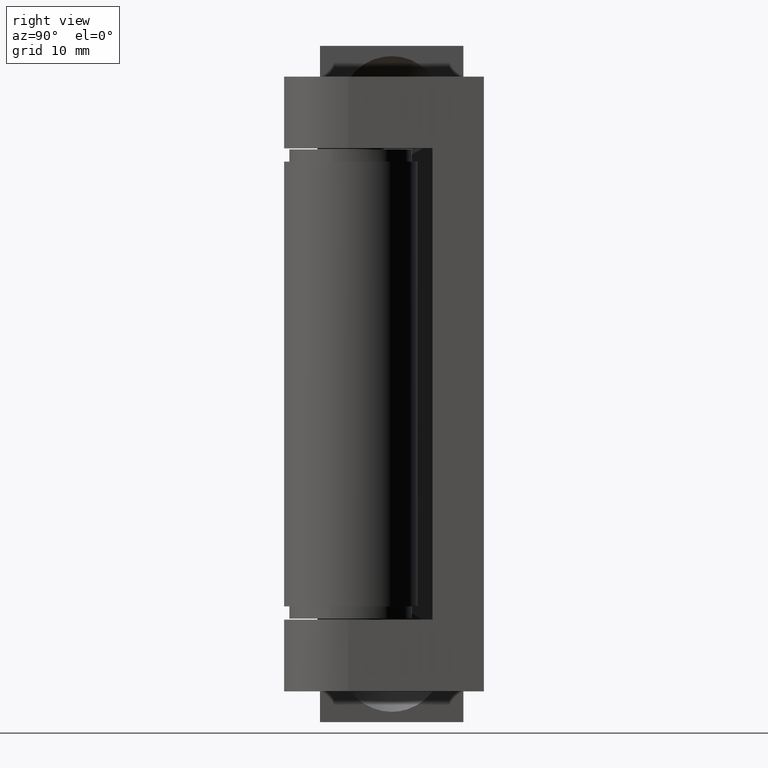
[diagram: clean part render]
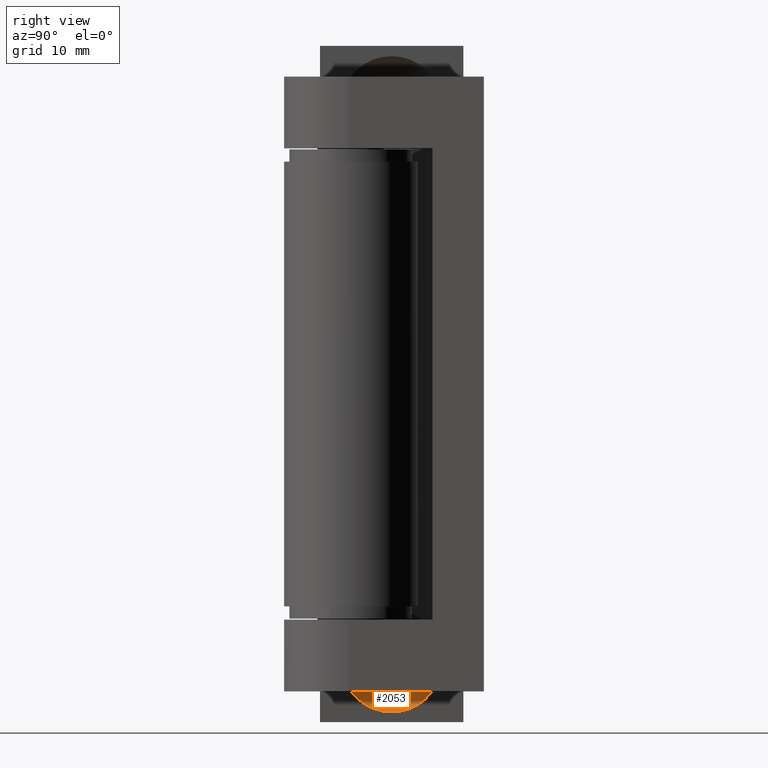
[diagram: same view with one face highlighted and labeled with its STEP entity id]
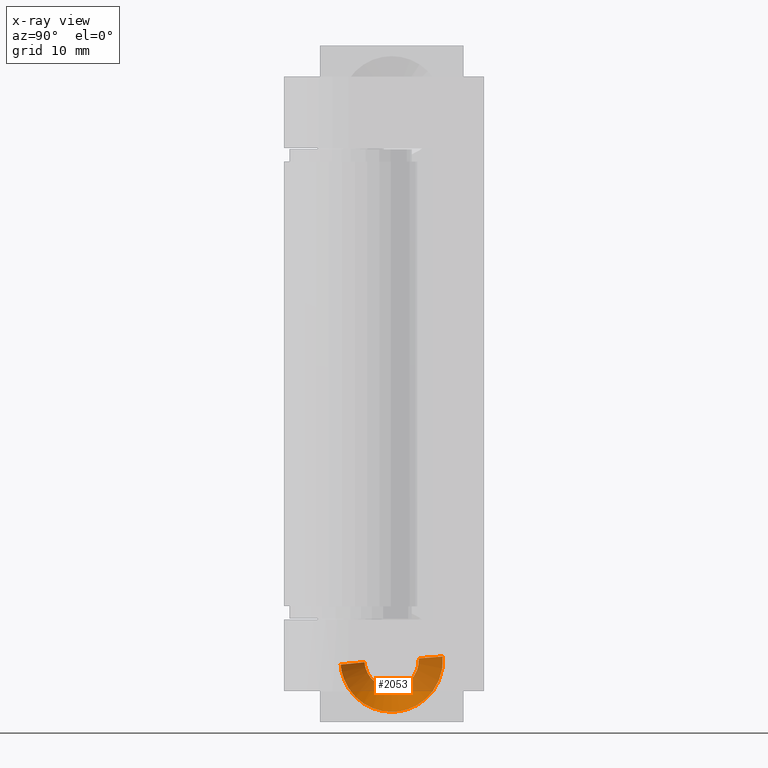
[diagram: x-ray of the same camera — body ghosted, the highlighted face saturated]
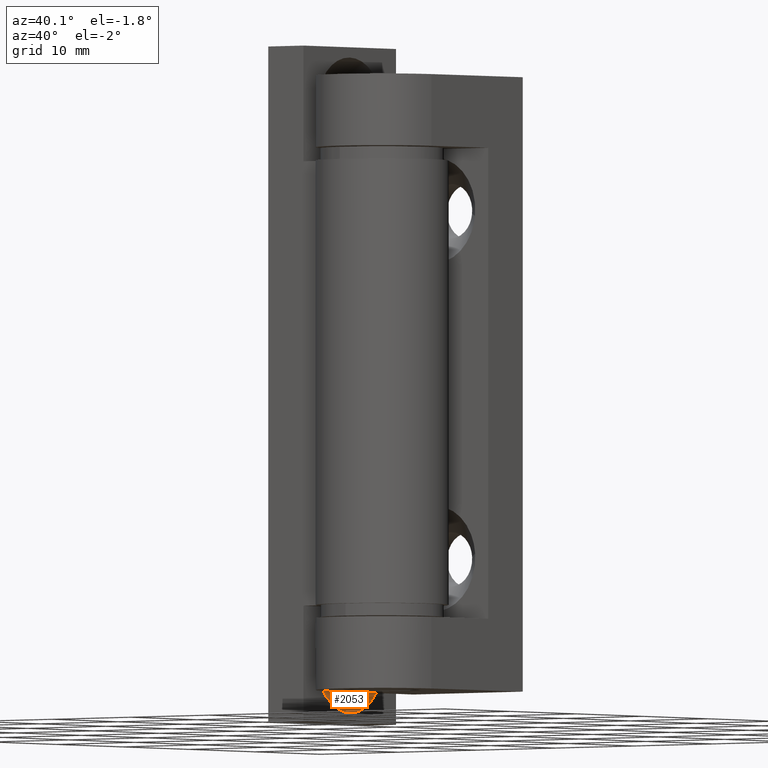
[diagram: same view with one face highlighted and labeled with its STEP entity id]
A machine part, right view. The second image highlights one B-rep face of the part: STEP entity #2053.
The next image is the same camera in x-ray: the body ghosted, the highlighted face saturated — about 60% of this face is hidden behind the body in this view.
A second angle (auxiliary view) of the same face is appended — the face is thin or edge-on in the first view.
In plain terms, the highlighted face is a freeform B-spline surface patch.
Its self-contained STEP definition (entity closure, byte-faithful):
#1744=CARTESIAN_POINT('',(-9.850000356230892,6.632692935120465,2.697633380869453));
#1745=VERTEX_POINT('',#1744);
#1746=CARTESIAN_POINT('',(-9.850000356230892,3.999999572522890,0.350000142492935));
#1747=VERTEX_POINT('',#1746);
#1748=CARTESIAN_POINT('',(-9.850000356230892,6.632692935120465,2.697633380869453));
#1749=CARTESIAN_POINT('',(-9.850000356230892,6.363065537566834,0.350000142492935));
#1750=CARTESIAN_POINT('',(-9.850000356230892,3.999999572522890,0.350000142492935));
#1758=(BOUNDED_CURVE()B_SPLINE_CURVE(2,(#1748,#1749,#1750),.UNSPECIFIED.,.F.,.U.)B_SPLINE_CURVE_WITH_KNOTS((3,3),(0.269767755884520,0.500000000000000),.UNSPECIFIED.)CURVE()GEOMETRIC_REPRESENTATION_ITEM()RATIONAL_B_SPLINE_CURVE((0.957343736445060,0.730266147785489,1.0))REPRESENTATION_ITEM(''));
#1759=EDGE_CURVE('',#1745,#1747,#1758,.T.);
#1798=CARTESIAN_POINT('',(-9.850000356230224,1.354942336429790,2.838221844222071));
#1799=VERTEX_POINT('',#1798);
#1805=CARTESIAN_POINT('',(-9.850000356230892,3.999999572522890,0.350000142492935));
#1806=CARTESIAN_POINT('',(-9.850000356230890,1.507128182215452,0.350000142492935));
#1807=CARTESIAN_POINT('',(-9.850000356230224,1.354942336429790,2.838221844222070));
#1815=(BOUNDED_CURVE()B_SPLINE_CURVE(2,(#1805,#1806,#1807),.UNSPECIFIED.,.F.,.U.)B_SPLINE_CURVE_WITH_KNOTS((3,3),(0.500000000000000,0.739332983866702),.UNSPECIFIED.)CURVE()GEOMETRIC_REPRESENTATION_ITEM()RATIONAL_B_SPLINE_CURVE((1.0,0.719603967948214,0.976072088019128))REPRESENTATION_ITEM(''));
#1816=EDGE_CURVE('',#1747,#1799,#1815,.T.);
#1843=CARTESIAN_POINT('',(-9.850000356224491,6.641830506918184,3.207916746221438));
#1844=VERTEX_POINT('',#1843);
#1845=CARTESIAN_POINT('',(-9.850000356224491,6.641830506918184,3.207916746221437));
#1846=CARTESIAN_POINT('',(-9.850000356230892,6.649999572522892,3.104118926112698));
#1847=CARTESIAN_POINT('',(-9.850000356230892,6.649999572522891,3.000000142492935));
#1848=CARTESIAN_POINT('',(-9.850000356230890,6.649999572522890,2.848321469613774));
#1849=CARTESIAN_POINT('',(-9.850000356230892,6.632692935120465,2.697633380869453));
#1857=(BOUNDED_CURVE()B_SPLINE_CURVE(2,(#1845,#1846,#1847,#1848,#1849),.UNSPECIFIED.,.F.,.U.)B_SPLINE_CURVE_WITH_KNOTS((3,2,3),(0.236331300626381,0.250000000000000,0.269767755884520),.UNSPECIFIED.)CURVE()GEOMETRIC_REPRESENTATION_ITEM()RATIONAL_B_SPLINE_CURVE((0.969723356158487,0.983986122573869,1.0,0.976840633401058,0.957343736445060))REPRESENTATION_ITEM(''));
#1858=EDGE_CURVE('',#1844,#1745,#1857,.T.);
#1946=CARTESIAN_POINT('',(-7.500000356177381,8.984586241209861,3.392295621543100));
#1947=VERTEX_POINT('',#1946);
#1948=CARTESIAN_POINT('',(-9.850000356224491,6.641830506918184,3.207916746221438));
#1949=CARTESIAN_POINT('',(-7.500000356177381,8.984586241209861,3.392295621543100));
#1950=QUASI_UNIFORM_CURVE('',1,(#1948,#1949),.UNSPECIFIED.,.F.,.U.);
#1951=EDGE_CURVE('',#1844,#1947,#1950,.T.);
#1968=CARTESIAN_POINT('',(-7.500000356177381,-0.984587096164081,2.607704663442770));
#1969=VERTEX_POINT('',#1968);
#1985=CARTESIAN_POINT('',(-9.850000356230224,1.354942336429790,2.838221844222071));
#1986=CARTESIAN_POINT('',(-7.500000356177381,-0.984587096164081,2.607704663442770));
#1987=QUASI_UNIFORM_CURVE('',1,(#1985,#1986),.UNSPECIFIED.,.F.,.U.);
#1988=EDGE_CURVE('',#1799,#1969,#1987,.T.);
#1994=CARTESIAN_POINT('',(-9.908750356230893,1.410379537656131,2.877478982013600));
#1995=CARTESIAN_POINT('',(-9.908750356230891,1.413537810555958,2.837349319935676));
#1996=CARTESIAN_POINT('',(-9.908750356230893,1.620044663291707,0.213430969652194));
#1997=CARTESIAN_POINT('',(-9.908750356230893,4.203306704327670,0.416738101456973));
#1998=CARTESIAN_POINT('',(-9.908750356230893,6.786568745363632,0.620045233261752));
#1999=CARTESIAN_POINT('',(-9.908750356230888,6.581819394061015,3.221632410511690));
#2000=CARTESIAN_POINT('',(-9.908750356230895,6.580385625214557,3.239850171019190));
#2001=CARTESIAN_POINT('',(-7.439781606230889,-1.057036165367492,2.760739602780715));
#2002=CARTESIAN_POINT('',(-7.439781606230889,-1.050868658664038,2.682373999894899));
#2003=CARTESIAN_POINT('',(-7.439781606230890,-0.647600024523400,-2.441639829173533));
#2004=CARTESIAN_POINT('',(-7.439781606230890,4.397019759832979,-2.044619641863444));
#2005=CARTESIAN_POINT('',(-7.439781606230890,9.441639544189357,-1.647599454553355));
#2006=CARTESIAN_POINT('',(-7.439781606230885,9.041802976312143,3.432805837903850));
#2007=CARTESIAN_POINT('',(-7.439781606230890,9.039003098261000,3.468381661658046));
#2015=(BOUNDED_SURFACE()B_SPLINE_SURFACE(2,1,((#1994,#2001),(#1995,#2002),(#1996,#2003),(#1997,#2004),(#1998,#2005),(#1999,#2006),(#2000,#2007)),.UNSPECIFIED.,.F.,.F.,.U.)B_SPLINE_SURFACE_WITH_KNOTS((3,1,2,1,3),(2,2),(0.0,0.187831547605922,8.571876486904440,16.955921426202959,17.040279242853781),(0.0,3.492502687567729),.UNSPECIFIED.)GEOMETRIC_REPRESENTATION_ITEM()RATIONAL_B_SPLINE_SURFACE(((1.013123638284700,1.013123638284700),(1.006561819142350,1.006561819142350),(0.707106781186548,0.707106781186548),(1.0,1.0),(0.707106781186548,0.707106781186548),(1.002947006204025,1.002947006204025),(1.005894012408049,1.005894012408049)))REPRESENTATION_ITEM('')SURFACE());
#2016=ORIENTED_EDGE('',*,*,#1858,.T.);
#2017=ORIENTED_EDGE('',*,*,#1759,.T.);
#2018=ORIENTED_EDGE('',*,*,#1816,.T.);
#2019=ORIENTED_EDGE('',*,*,#1988,.T.);
#2020=CARTESIAN_POINT('',(-7.500000356230890,3.999999572522890,-1.999999857507065));
#2021=VERTEX_POINT('',#2020);
#2022=CARTESIAN_POINT('',(-7.500000356230890,3.999999572522890,-1.999999857507065));
#2023=CARTESIAN_POINT('',(-7.500000356230893,-0.621952885011518,-1.999999857507065));
#2024=CARTESIAN_POINT('',(-7.500000356177381,-0.984587096164081,2.607704663442770));
#2032=(BOUNDED_CURVE()B_SPLINE_CURVE(2,(#2022,#2023,#2024),.UNSPECIFIED.,.F.,.U.)B_SPLINE_CURVE_WITH_KNOTS((3,3),(0.500000000000000,0.736331300604791),.UNSPECIFIED.)CURVE()GEOMETRIC_REPRESENTATION_ITEM()RATIONAL_B_SPLINE_CURVE((1.0,0.723120658637973,0.969723356113431))REPRESENTATION_ITEM(''));
#2033=EDGE_CURVE('',#2021,#1969,#2032,.T.);
#2034=ORIENTED_EDGE('',*,*,#2033,.F.);
#2035=CARTESIAN_POINT('',(-7.500000356177381,8.984586241209861,3.392295621543100));
#2036=CARTESIAN_POINT('',(-7.500000356230890,8.999999572522892,3.196450677939912));
#2037=CARTESIAN_POINT('',(-7.500000356230890,8.999999572522890,3.000000142492935));
#2038=CARTESIAN_POINT('',(-7.500000356230891,8.999999572522892,-1.999999857507066));
#2039=CARTESIAN_POINT('',(-7.500000356230890,3.999999572522890,-1.999999857507065));
#2047=(BOUNDED_CURVE()B_SPLINE_CURVE(2,(#2035,#2036,#2037,#2038,#2039),.UNSPECIFIED.,.F.,.U.)B_SPLINE_CURVE_WITH_KNOTS((3,2,3),(0.236331300604790,0.250000000000000,0.500000000000000),.UNSPECIFIED.)CURVE()GEOMETRIC_REPRESENTATION_ITEM()RATIONAL_B_SPLINE_CURVE((0.969723356113431,0.983986122548574,1.0,0.707106781186548,1.0))REPRESENTATION_ITEM(''));
#2048=EDGE_CURVE('',#1947,#2021,#2047,.T.);
#2049=ORIENTED_EDGE('',*,*,#2048,.F.);
#2050=ORIENTED_EDGE('',*,*,#1951,.F.);
#2051=EDGE_LOOP('',(#2016,#2017,#2018,#2019,#2034,#2049,#2050));
#2052=FACE_OUTER_BOUND('',#2051,.T.);
#2053=ADVANCED_FACE('',(#2052),#2015,.F.);